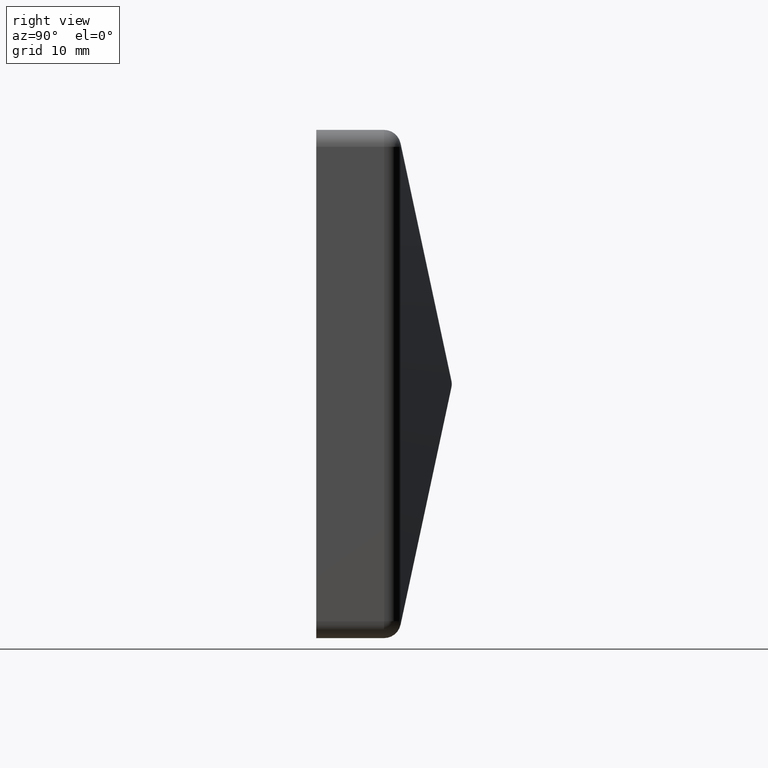
[diagram: clean part render]
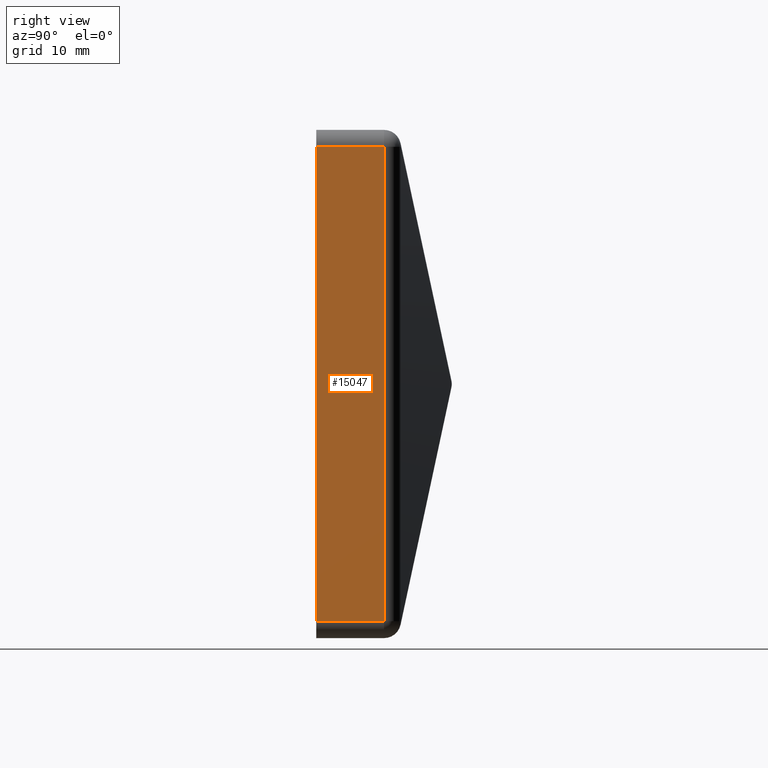
[diagram: same view with one face highlighted and labeled with its STEP entity id]
A machine part, right view. The second image highlights one B-rep face of the part: STEP entity #15047.
In plain terms, the highlighted planar face has unit normal (-1, 0, 0).
Its self-contained STEP definition (entity closure, byte-faithful):
#241 = LINE ( 'NONE', #3058, #13450 ) ;
#999 = DIRECTION ( 'NONE',  ( 0.0000000000000000000, 0.0000000000000000000, 1.000000000000000000 ) ) ;
#1177 = LINE ( 'NONE', #3044, #7367 ) ;
#1619 = LINE ( 'NONE', #3172, #3228 ) ;
#1726 = EDGE_CURVE ( 'NONE', #11085, #16096, #1619, .T. ) ;
#2326 = PLANE ( 'NONE',  #7067 ) ;
#2746 = CARTESIAN_POINT ( 'NONE',  ( 22.49999999999999300, 6.000000000000000900, -21.00000000000003200 ) ) ;
#3044 = CARTESIAN_POINT ( 'NONE',  ( 22.49999999999999300, 12.00000000000000000, 20.99999999999997900 ) ) ;
#3058 = CARTESIAN_POINT ( 'NONE',  ( 22.49999999999999300, 0.0000000000000000000, -22.50000000000003600 ) ) ;
#3172 = CARTESIAN_POINT ( 'NONE',  ( 22.49999999999999300, 6.000000000000000900, -22.50000000000003600 ) ) ;
#3228 = VECTOR ( 'NONE', #12173, 1000.000000000000000 ) ;
#3890 = ORIENTED_EDGE ( 'NONE', *, *, #7141, .T. ) ;
#4044 = LINE ( 'NONE', #15639, #11030 ) ;
#6051 = CARTESIAN_POINT ( 'NONE',  ( 22.49999999999999300, 6.000000000000000900, 20.99999999999997900 ) ) ;
#6391 = EDGE_CURVE ( 'NONE', #11262, #15054, #241, .T. ) ;
#6947 = DIRECTION ( 'NONE',  ( 0.0000000000000000000, -1.000000000000000000, 0.0000000000000000000 ) ) ;
#7067 = AXIS2_PLACEMENT_3D ( 'NONE', #8682, #11244, #999 ) ;
#7141 = EDGE_CURVE ( 'NONE', #15054, #11085, #4044, .T. ) ;
#7367 = VECTOR ( 'NONE', #6947, 1000.000000000000000 ) ;
#8109 = CARTESIAN_POINT ( 'NONE',  ( 22.49999999999999300, 0.0000000000000000000, 20.99999999999997900 ) ) ;
#8412 = DIRECTION ( 'NONE',  ( -0.0000000000000000000, -0.0000000000000000000, -1.000000000000000000 ) ) ;
#8682 = CARTESIAN_POINT ( 'NONE',  ( 22.49999999999999300, 12.00000000000000000, -22.50000000000003600 ) ) ;
#10932 = FACE_OUTER_BOUND ( 'NONE', #14143, .T. ) ;
#11030 = VECTOR ( 'NONE', #12061, 1000.000000000000000 ) ;
#11085 = VERTEX_POINT ( 'NONE', #2746 ) ;
#11244 = DIRECTION ( 'NONE',  ( -1.000000000000000000, 0.0000000000000000000, 0.0000000000000000000 ) ) ;
#11262 = VERTEX_POINT ( 'NONE', #8109 ) ;
#12061 = DIRECTION ( 'NONE',  ( -0.0000000000000000000, 1.000000000000000000, -0.0000000000000000000 ) ) ;
#12092 = ORIENTED_EDGE ( 'NONE', *, *, #14211, .T. ) ;
#12173 = DIRECTION ( 'NONE',  ( -0.0000000000000000000, -0.0000000000000000000, 1.000000000000000000 ) ) ;
#12436 = CARTESIAN_POINT ( 'NONE',  ( 22.49999999999999300, 0.0000000000000000000, -21.00000000000003200 ) ) ;
#12553 = ORIENTED_EDGE ( 'NONE', *, *, #1726, .T. ) ;
#12699 = ORIENTED_EDGE ( 'NONE', *, *, #6391, .T. ) ;
#13450 = VECTOR ( 'NONE', #8412, 1000.000000000000000 ) ;
#14143 = EDGE_LOOP ( 'NONE', ( #12699, #3890, #12553, #12092 ) ) ;
#14211 = EDGE_CURVE ( 'NONE', #16096, #11262, #1177, .T. ) ;
#15047 = ADVANCED_FACE ( 'NONE', ( #10932 ), #2326, .F. ) ;
#15054 = VERTEX_POINT ( 'NONE', #12436 ) ;
#15639 = CARTESIAN_POINT ( 'NONE',  ( 22.49999999999999300, 12.00000000000000000, -21.00000000000003200 ) ) ;
#16096 = VERTEX_POINT ( 'NONE', #6051 ) ;